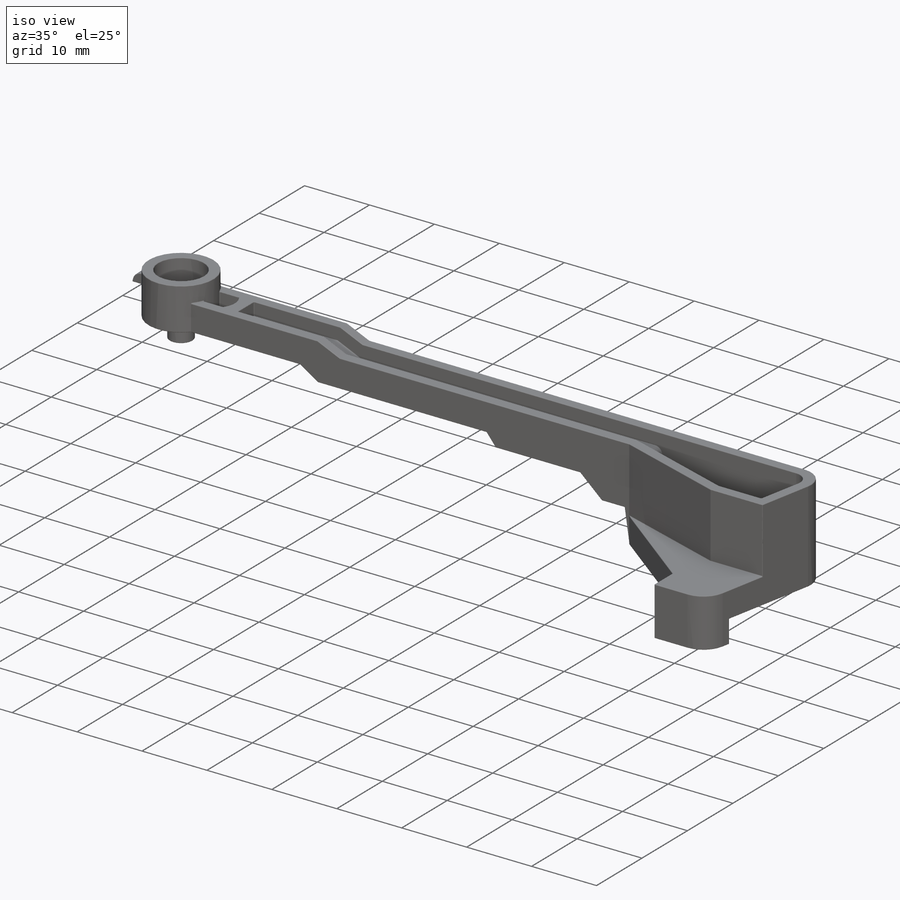
[diagram: iso view]
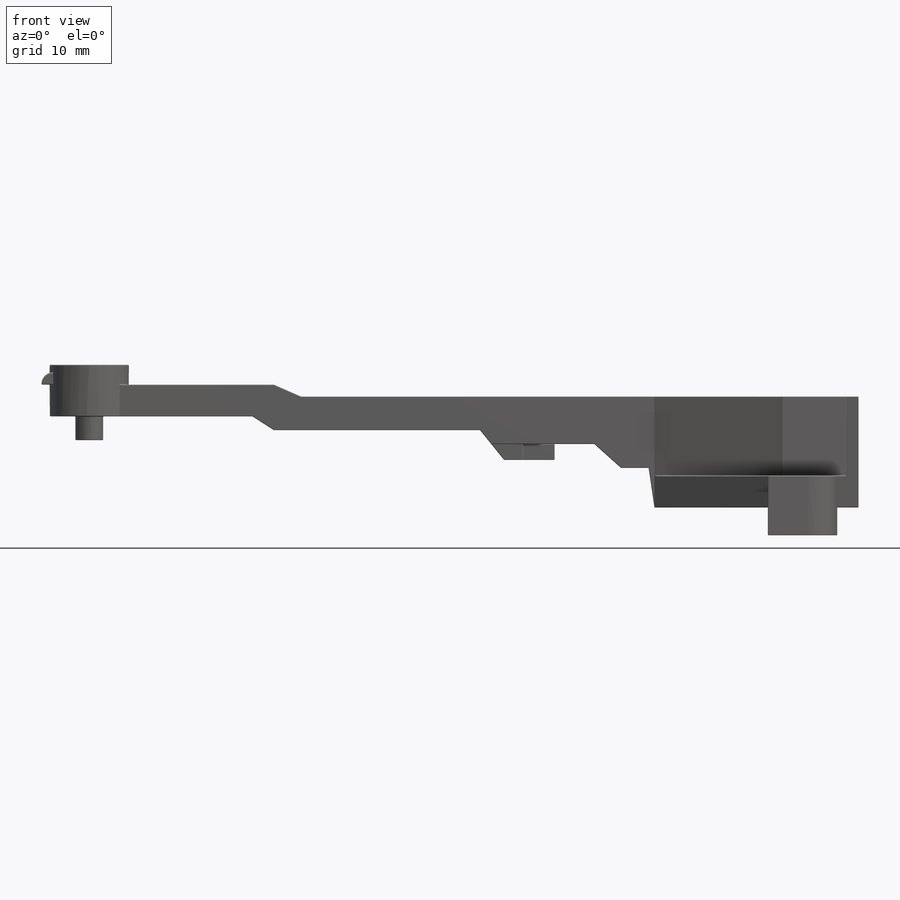
[diagram: front view]
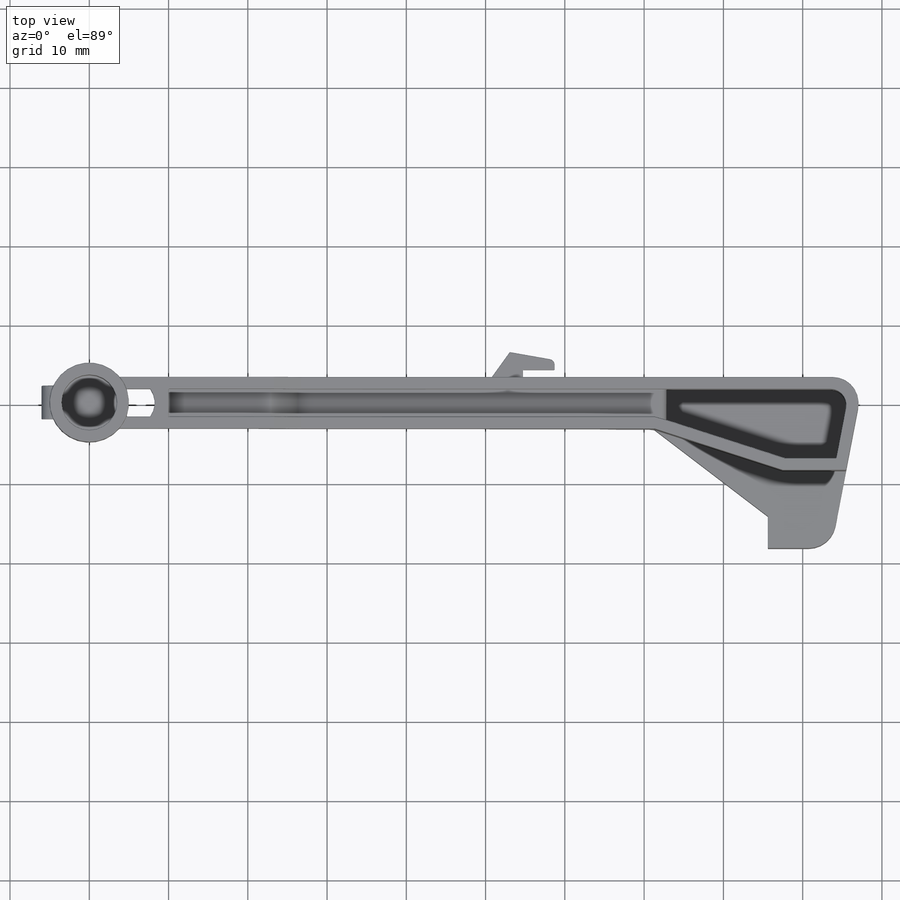
[diagram: top view]
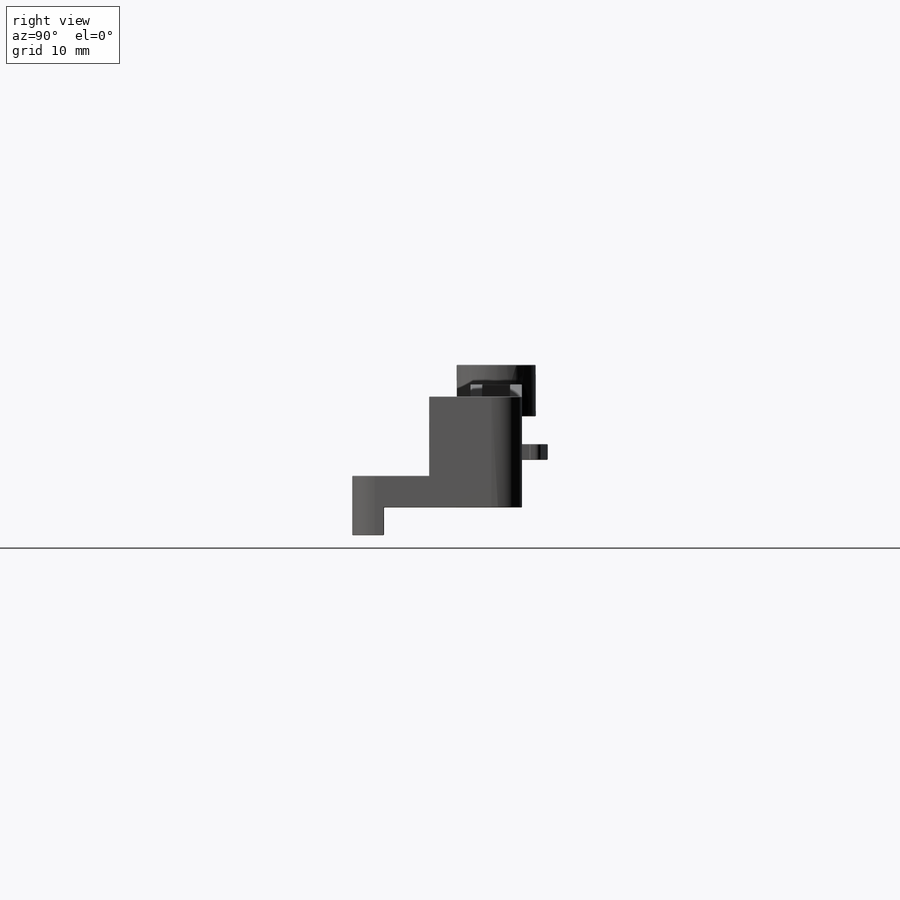
[diagram: right view]
SOLIDWORKS PART (.sldprt)
format: sldprt  version: not decoded by parser v0  size: 1,899,008 bytes
history: native  units: mm
features: sketch x24, fillet x19, cut_extrude x13, extrude x10, material x1, plane x1 (+11 scaffold rows collapsed)
feature tree (79):
  scaffold x11  (default folders/planes/origin — collapsed)
  material  "Material <not specified>"
  sketch  "Sketch1"  dims[c1.D1=10.0mm c1.D8=7.0mm c1.D9=10.0mm c1.D4=6.5mm c1.D2=3.5mm c1.D3=3.5mm c2.D4=100.0mm c2.D5=27.5mm c2.D6=4.0mm c2.D7=9.0mm c3.D4=96.5mm c3.D5=23.5mm c3.D9=18.0mm c3.D10=23.5mm c3.D2=90.0mm c3.D3=67.5mm c4.D5=8.0mm c4.D6=8.0mm c4.D7=17.0mm c4.D8=0.0mm c4.D9=0.0mm c4.D10=0.0mm c5.D8=7.0mm]
  extrude  "Boss-Extrude1"  Depth=5.75mm
  sketch  "Sketch2"  dims[D1=4.25mm D2=1.5mm D3=1.5mm D4=2.125mm]
  extrude  "Boss-Extrude2"  Depth=1.5mm
  sketch  "Sketch3"  dims[D1=7.0mm D2=10.0mm]
  extrude  "Boss-Extrude3"  Depth=2.5mm
  sketch  "Sketch4"  dims[D1=7.0mm]
  cut_extrude  "Cut-Extrude1"  Depth=3.5mm
  sketch  "Sketch5"  dims[D5=3.0mm D1=3.0mm D2=3.0mm D3=1.5mm D4=1.5mm]
  cut_extrude  "Cut-Extrude2"  Depth=7mm
  sketch  "Sketch6"  dims[c1.D1=~1.485738mm c1.D2=~47.124314mm c2.D1=4.0mm c2.D2=0.0mm c2.D3=19.5mm c2.D4=3.25mm c3.D3=19.5mm c3.D5=~2.043032mm c3.D6=~60.457832mm c4.D5=4.25mm c4.D6=0.0mm c4.D7=19.5mm c4.D8=3.75mm]
  cut_extrude  "Cut-Extrude3"  Depth=20mm
  sketch  "Sketch7"  dims[D1=3.5mm]
  extrude  "Boss-Extrude4"  Depth=3mm
  sketch  "Sketch8"  dims[D1=22.5mm]
  extrude  "Boss-Extrude5"  Depth=9.75mm
  sketch  "Sketch9"  dims[D1=4.0mm D2=8.0mm D3=18.0mm]
  extrude  "Boss-Extrude6"  Depth=4mm
  sketch  "Sketch10"  dims[D1=10.0mm D4=4.0mm D2=1.5mm D3=1.5mm]
  sketch  "Sketch11"  dims[D1=3.75mm]
  sketch  "Sketch12"  dims[D1=4.0mm]
  cut_extrude  "Cut-Extrude4"  Depth=2mm
  cut_extrude  "Cut-Extrude5"  Depth=2mm
  cut_extrude  "Cut-Extrude6"  Depth=2mm
  sketch  "Sketch14"  dims[c1.D6=2.0mm c1.D2=~0.446389mm c1.D1=1.5mm c2.D2=1.5mm c2.D3=1.5mm c2.D4=1.5mm c2.D5=1.5mm c2.D6=~0.22543mm c2.D1=1.5mm]
  cut_extrude  "Cut-Extrude7"  Depth=10mm
  sketch  "Sketch15"  dims[D1=4.0mm]
  cut_extrude  "Cut-Extrude8"  Depth=2mm
  fillet  "Fillet1"  Radius=3.5mm
  sketch  "Sketch16"  dims[D1=1.5mm]
  cut_extrude  "Cut-Extrude9"  Depth=2mm
  sketch  "Sketch17"  dims[D1=~2.360442mm]
  extrude  "Boss-Extrude7"  Depth=3.5mm
  sketch  "Sketch18"  dims[D1=8.5mm D2=1.5mm]
  extrude  "Boss-Extrude8"  Depth=2mm
  plane  "Plane1"  Offset=20.3mm
  sketch  "Sketch19"  dims[c1.D1=~1.73207mm c1.D2=~3.04632mm c2.D1=0.0mm c2.D2=4.0mm c2.D3=1.5mm c2.D4=3.0mm]
  cut_extrude  "Cut-Extrude10"  [1 undecoded]
  sketch  "Sketch20"  dims[D1=6.0mm D2=26.0mm D3=13.0mm D4=3.5mm D5=9.0mm D6=2.25mm D7=4.5mm]
  extrude  "Boss-Extrude9"  Depth=7mm
  sketch  "Sketch22"  dims[c1.D1=~3.141971mm c1.D2=~22.970937mm c2.D1=0.0mm c2.D2=0.0mm]
  cut_extrude  "Cut-Extrude11"  Depth=10mm
  sketch  "Sketch24"  dims[D1=4.0mm D2=1.25mm D3=4.0mm D4=4.0mm D5=5.75mm D6=2.5mm]
  extrude  "Boss-Extrude10"  Depth=2mm
  sketch  "Sketch25"  dims[D1=2.0mm]
  cut_extrude  "Cut-Extrude13"  Depth=5mm
  fillet  "Fillet2"  Radius=1.5mm
  fillet  "Fillet4"  Radius=0.75mm
  fillet  "Fillet5"  Radius=1mm
  fillet  "Fillet6"  Radius=0.25mm
  fillet  "Fillet9"  Radius=0.1mm
  fillet  "Fillet12"  Radius=1mm
  fillet  "Fillet14"  Radius=0.1mm
  fillet  "Fillet15"  Radius=0.1mm
  fillet  "Fillet16"  Radius=0.1mm
  sketch  "Sketch26"  dims[D1=0.0mm]
  cut_extrude  "Cut-Extrude14"  Depth=25mm
  fillet  "Fillet17"  Radius=0.1mm
  fillet  "Fillet18"  Radius=0.1mm
  fillet  "Fillet19"  Radius=0.1mm
  fillet  "Fillet20"  Radius=0.1mm
  sketch  "Sketch27"  dims[D1=0.0mm]
  fillet  "Fillet21"  Radius=0.1mm
  fillet  "Fillet22"  Radius=0.1mm
  fillet  "Fillet23"  Radius=0.1mm
  fillet  "Fillet24"  Radius=0.1mm
  fillet  "Fillet25"  Radius=0.05mm
decode coverage: 65 of 66 modeling features carry decoded parameters
note: ~ marks probable driven/reference dimensions
note: 1 parameter value undecoded
note: suppression state not decoded; provenance and decode notes live in map.json
